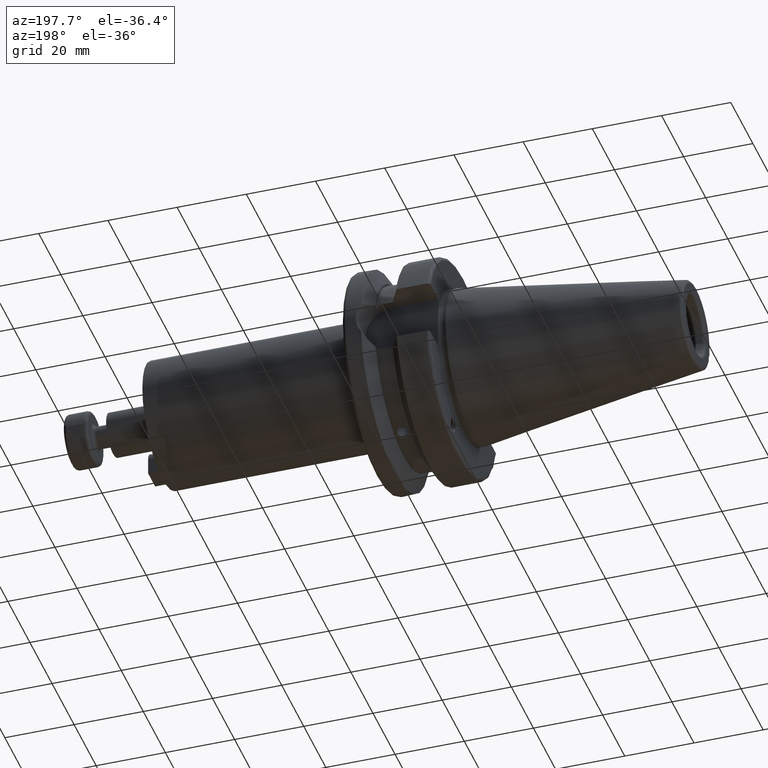
[diagram: clean part render]
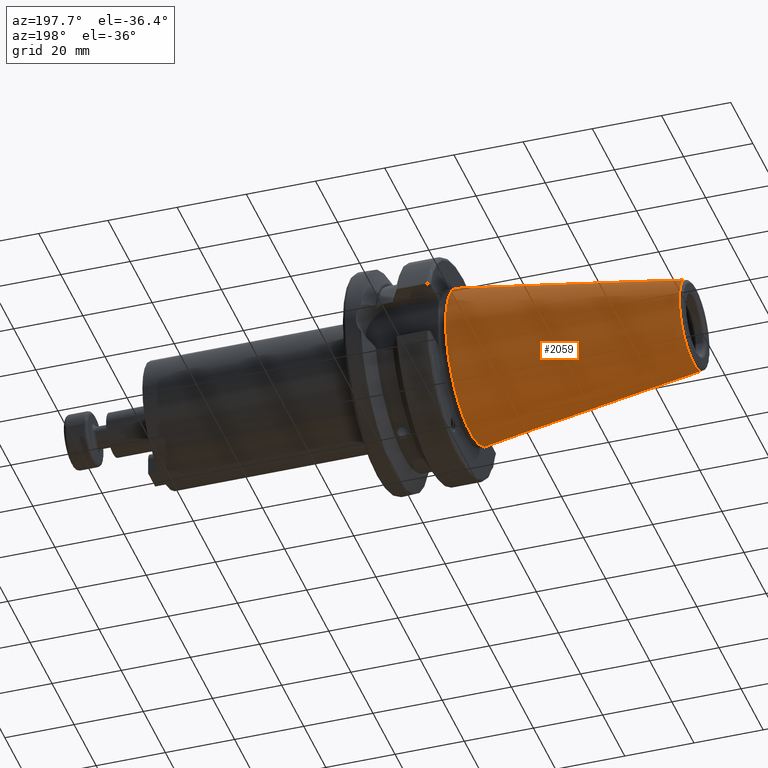
[diagram: same view with one face highlighted and labeled with its STEP entity id]
A machine part, auxiliary view. The second image highlights one B-rep face of the part: STEP entity #2059.
In plain terms, the highlighted conical surface has half-angle 8.297 deg.
Its self-contained STEP definition (entity closure, byte-faithful):
#228=CIRCLE('',#2350,12.8122885780937);
#229=CIRCLE('',#2351,12.8122885780937);
#232=CIRCLE('',#2355,22.225);
#302=CONICAL_SURFACE('',#2354,17.5186442890469,0.144812498238939);
#367=FACE_OUTER_BOUND('',#502,.T.);
#502=EDGE_LOOP('',(#1648,#1649,#1650,#1651,#1652));
#653=LINE('',#3740,#787);
#787=VECTOR('',#2822,17.5186442890469);
#964=VERTEX_POINT('',#3730);
#965=VERTEX_POINT('',#3731);
#967=VERTEX_POINT('',#3738);
#1211=EDGE_CURVE('',#964,#965,#228,.T.);
#1212=EDGE_CURVE('',#965,#964,#229,.T.);
#1215=EDGE_CURVE('',#967,#967,#232,.T.);
#1216=EDGE_CURVE('',#967,#964,#653,.T.);
#1648=ORIENTED_EDGE('',*,*,#1215,.F.);
#1649=ORIENTED_EDGE('',*,*,#1216,.T.);
#1650=ORIENTED_EDGE('',*,*,#1211,.T.);
#1651=ORIENTED_EDGE('',*,*,#1212,.T.);
#1652=ORIENTED_EDGE('',*,*,#1216,.F.);
#2059=ADVANCED_FACE('',(#367),#302,.T.);
#2350=AXIS2_PLACEMENT_3D('',#3732,#2810,#2811);
#2351=AXIS2_PLACEMENT_3D('',#3733,#2812,#2813);
#2354=AXIS2_PLACEMENT_3D('',#3737,#2818,#2819);
#2355=AXIS2_PLACEMENT_3D('',#3739,#2820,#2821);
#2810=DIRECTION('center_axis',(1.,0.,0.));
#2811=DIRECTION('ref_axis',(0.,0.,-1.));
#2812=DIRECTION('center_axis',(1.,0.,0.));
#2813=DIRECTION('ref_axis',(0.,0.,-1.));
#2818=DIRECTION('center_axis',(1.,0.,0.));
#2819=DIRECTION('ref_axis',(0.,1.,0.));
#2820=DIRECTION('center_axis',(1.,0.,0.));
#2821=DIRECTION('ref_axis',(0.,0.,-1.));
#2822=DIRECTION('',(-0.989532981063282,0.144306893071729,1.76724974695192E-17));
#3730=CARTESIAN_POINT('',(-64.5443068930717,-12.8122885780937,-1.56905281969147E-15));
#3731=CARTESIAN_POINT('',(-64.5443068930717,-1.56905281969147E-15,12.8122885780937));
#3732=CARTESIAN_POINT('Origin',(-64.5443068930717,0.,0.));
#3733=CARTESIAN_POINT('Origin',(-64.5443068930717,0.,0.));
#3737=CARTESIAN_POINT('Origin',(-32.2721534465359,0.,0.));
#3738=CARTESIAN_POINT('',(4.44089209850063E-15,-22.225,-2.72177751110499E-15));
#3739=CARTESIAN_POINT('Origin',(0.,0.,0.));
#3740=CARTESIAN_POINT('',(-32.2721534465359,-17.5186442890469,-2.14541516539823E-15));